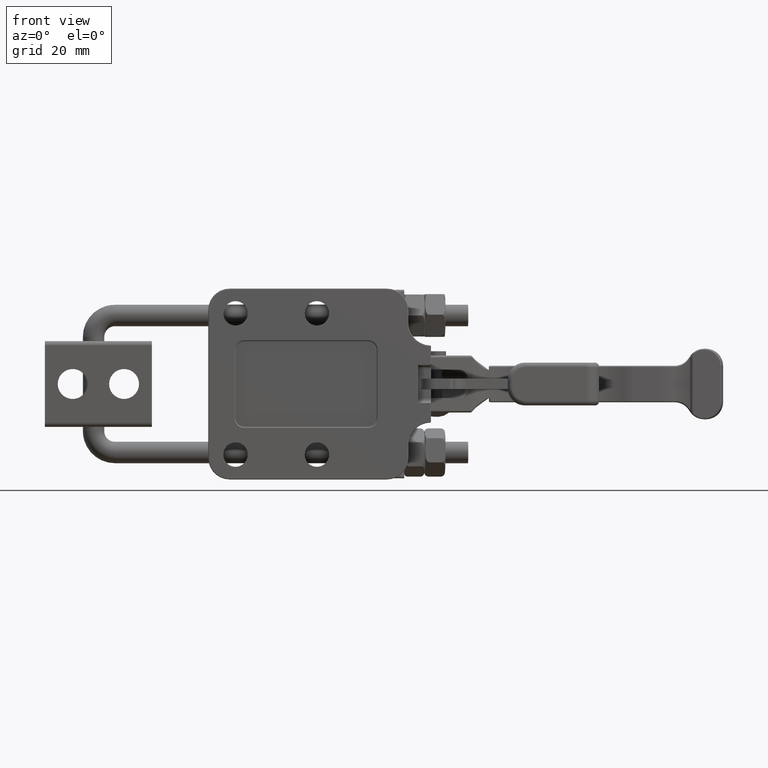
[diagram: clean part render]
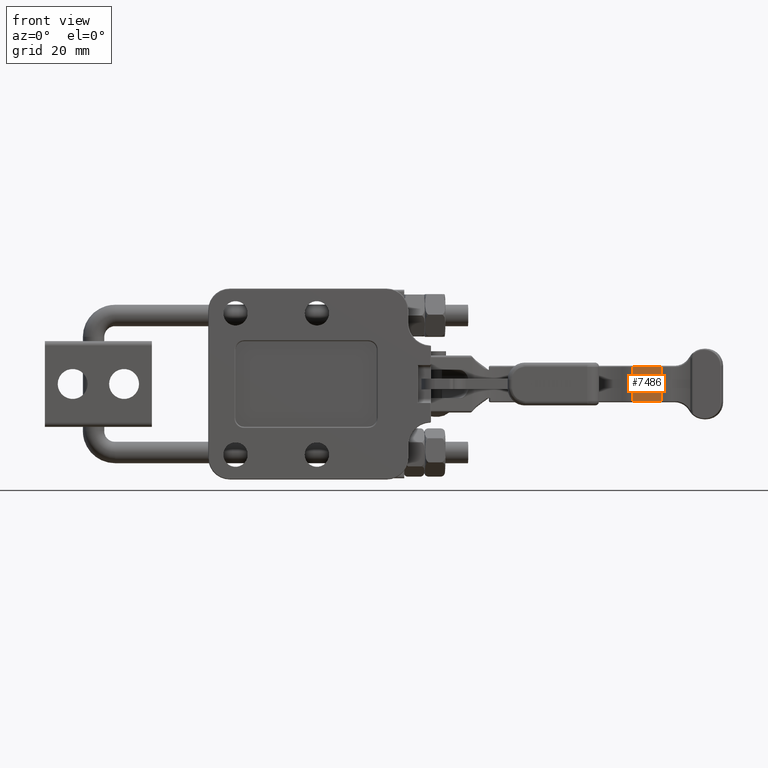
[diagram: same view with one face highlighted and labeled with its STEP entity id]
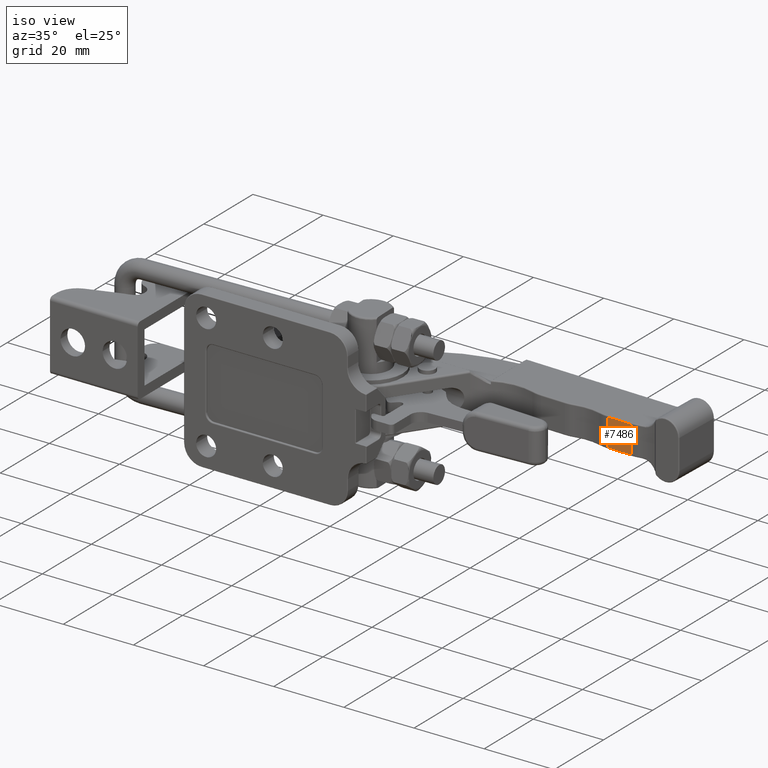
[diagram: same view with one face highlighted and labeled with its STEP entity id]
A machine part, front view. The second image highlights one B-rep face of the part: STEP entity #7486.
A second angle (iso view) of the same face is appended — the face is thin or edge-on in the first view.
In plain terms, the highlighted planar face has unit normal (-0.0279, -0.9996, -0).
Its self-contained STEP definition (entity closure, byte-faithful):
#642=PLANE('',#8299);
#985=LINE('',#17079,#1400);
#986=LINE('',#17081,#1401);
#987=LINE('',#17083,#1402);
#988=LINE('',#17084,#1403);
#1400=VECTOR('',#10190,6.84489398755953);
#1401=VECTOR('',#10191,7.9);
#1402=VECTOR('',#10192,6.84489398755953);
#1403=VECTOR('',#10193,7.9);
#2000=FACE_OUTER_BOUND('',#2532,.T.);
#2532=EDGE_LOOP('',(#6345,#6346,#6347,#6348));
#3697=VERTEX_POINT('',#17077);
#3698=VERTEX_POINT('',#17078);
#3699=VERTEX_POINT('',#17080);
#3700=VERTEX_POINT('',#17082);
#4615=EDGE_CURVE('',#3697,#3698,#985,.T.);
#4616=EDGE_CURVE('',#3698,#3699,#986,.T.);
#4617=EDGE_CURVE('',#3700,#3699,#987,.T.);
#4618=EDGE_CURVE('',#3700,#3697,#988,.T.);
#6345=ORIENTED_EDGE('',*,*,#4615,.T.);
#6346=ORIENTED_EDGE('',*,*,#4616,.T.);
#6347=ORIENTED_EDGE('',*,*,#4617,.F.);
#6348=ORIENTED_EDGE('',*,*,#4618,.T.);
#7486=ADVANCED_FACE('',(#2000),#642,.T.);
#8299=AXIS2_PLACEMENT_3D('',#17076,#10188,#10189);
#10188=DIRECTION('center_axis',(-0.033459756340951,-0.99944006558953,0.));
#10189=DIRECTION('ref_axis',(0.,0.,-1.));
#10190=DIRECTION('',(0.99944006558953,-0.033459756340951,0.));
#10191=DIRECTION('',(-5.57641134394E-14,0.,1.));
#10192=DIRECTION('',(0.99944006558953,-0.033459756340951,0.));
#10193=DIRECTION('',(-8.454559134361E-14,0.,-1.));
#17076=CARTESIAN_POINT('Origin',(58.96560011167,14.45261116989,3.25));
#17077=CARTESIAN_POINT('',(86.14526841276,13.54267658742,-3.95));
#17078=CARTESIAN_POINT('',(92.98632970864,13.31364810242,-3.95));
#17079=CARTESIAN_POINT('',(86.14526841276,13.54267658742,-3.95));
#17080=CARTESIAN_POINT('',(92.98632970864,13.31364810242,3.95));
#17081=CARTESIAN_POINT('',(92.98632970864,13.31364810242,-3.95));
#17082=CARTESIAN_POINT('',(86.14526841276,13.54267658742,3.95));
#17083=CARTESIAN_POINT('',(86.14526841276,13.54267658742,3.95));
#17084=CARTESIAN_POINT('',(86.14526841276,13.54267658742,3.95));